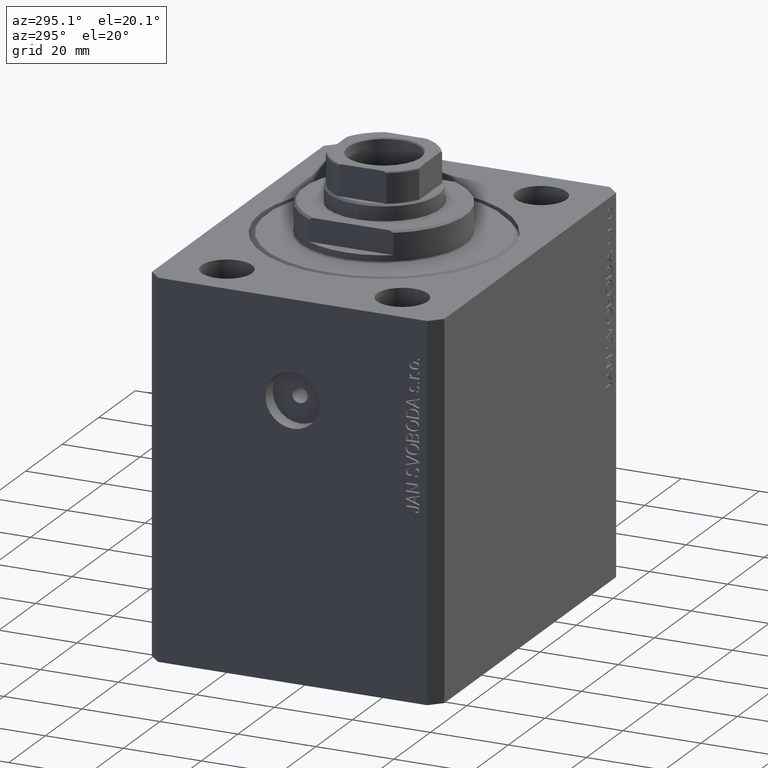
[diagram: clean part render]
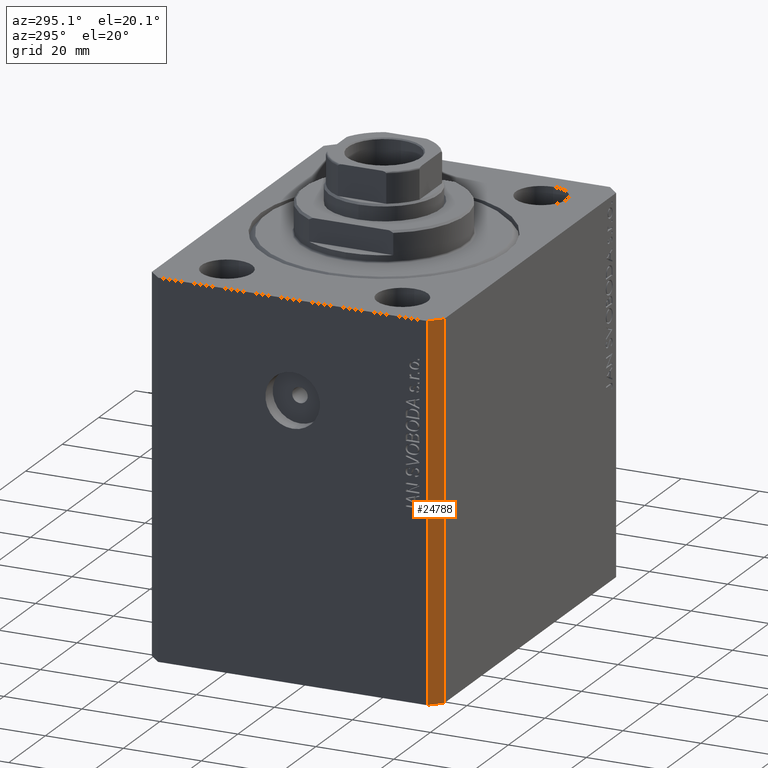
[diagram: same view with one face highlighted and labeled with its STEP entity id]
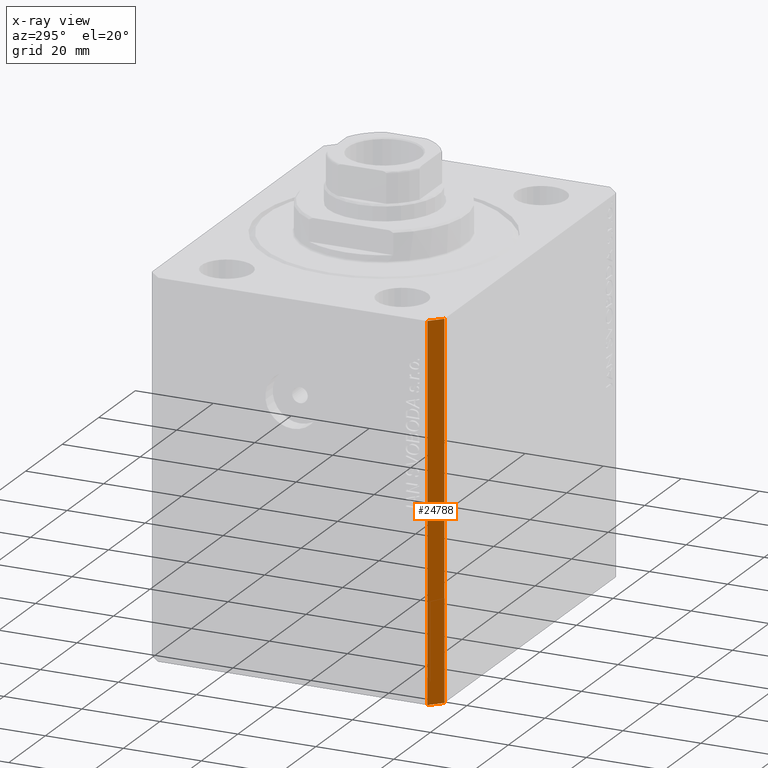
[diagram: x-ray of the same camera — body ghosted, the highlighted face saturated]
A machine part, auxiliary view. The second image highlights one B-rep face of the part: STEP entity #24788.
The next image is the same camera in x-ray: the body ghosted, the highlighted face saturated — about 0% of this face is hidden behind the body in this view.
In plain terms, the highlighted planar face has unit normal (-0.7071, -0.7071, 0).
Its self-contained STEP definition (entity closure, byte-faithful):
#889 = VECTOR ( 'NONE', #39900, 1000.000000000000114 ) ;
#1004 = EDGE_CURVE ( 'NONE', #42676, #34347, #13679, .T. ) ;
#5081 = CARTESIAN_POINT ( 'NONE',  ( -50.00000000000000000, -34.50000000000000000, -95.00000000000000000 ) ) ;
#5950 = EDGE_CURVE ( 'NONE', #43506, #7069, #13274, .T. ) ;
#7069 = VERTEX_POINT ( 'NONE', #34210 ) ;
#7318 = DIRECTION ( 'NONE',  ( -0.7071067811865457964, -0.7071067811865492381, 0.000000000000000000 ) ) ;
#7351 = CARTESIAN_POINT ( 'NONE',  ( -50.00000000000000000, -34.50000000000000000, -95.00000000000000000 ) ) ;
#8243 = EDGE_CURVE ( 'NONE', #34347, #7069, #27576, .T. ) ;
#8548 = VECTOR ( 'NONE', #19715, 1000.000000000000000 ) ;
#10399 = CARTESIAN_POINT ( 'NONE',  ( -50.00000000000000000, -34.50000000000000000, 0.000000000000000000 ) ) ;
#10434 = DIRECTION ( 'NONE',  ( 0.000000000000000000, 0.000000000000000000, 1.000000000000000000 ) ) ;
#13274 = LINE ( 'NONE', #15992, #889 ) ;
#13610 = EDGE_LOOP ( 'NONE', ( #26225, #18102, #38078, #41554 ) ) ;
#13679 = LINE ( 'NONE', #7351, #41925 ) ;
#15992 = CARTESIAN_POINT ( 'NONE',  ( -50.00000000000000000, -34.50000000000000000, 0.000000000000000000 ) ) ;
#18102 = ORIENTED_EDGE ( 'NONE', *, *, #19043, .F. ) ;
#19043 = EDGE_CURVE ( 'NONE', #42676, #43506, #36842, .T. ) ;
#19715 = DIRECTION ( 'NONE',  ( 0.000000000000000000, 0.000000000000000000, 1.000000000000000000 ) ) ;
#24788 = ADVANCED_FACE ( 'NONE', ( #34617 ), #38212, .T. ) ;
#26225 = ORIENTED_EDGE ( 'NONE', *, *, #5950, .F. ) ;
#27576 = LINE ( 'NONE', #41309, #34057 ) ;
#27863 = CARTESIAN_POINT ( 'NONE',  ( -50.00000000000000000, -34.50000000000000000, -95.00000000000000000 ) ) ;
#28082 = DIRECTION ( 'NONE',  ( 0.7071067811865492381, -0.7071067811865457964, 0.000000000000000000 ) ) ;
#34057 = VECTOR ( 'NONE', #10434, 1000.000000000000000 ) ;
#34210 = CARTESIAN_POINT ( 'NONE',  ( -47.00000000000000000, -37.49999999999999289, 0.000000000000000000 ) ) ;
#34243 = CARTESIAN_POINT ( 'NONE',  ( -47.00000000000000000, -37.49999999999999289, -95.00000000000000000 ) ) ;
#34347 = VERTEX_POINT ( 'NONE', #34243 ) ;
#34617 = FACE_OUTER_BOUND ( 'NONE', #13610, .T. ) ;
#36842 = LINE ( 'NONE', #5081, #8548 ) ;
#37572 = DIRECTION ( 'NONE',  ( 0.7071067811865491270, -0.7071067811865459074, 0.000000000000000000 ) ) ;
#38078 = ORIENTED_EDGE ( 'NONE', *, *, #1004, .T. ) ;
#38212 = PLANE ( 'NONE',  #43789 ) ;
#39294 = CARTESIAN_POINT ( 'NONE',  ( -50.00000000000000000, -34.50000000000000000, -95.00000000000000000 ) ) ;
#39900 = DIRECTION ( 'NONE',  ( 0.7071067811865491270, -0.7071067811865459074, 0.000000000000000000 ) ) ;
#41309 = CARTESIAN_POINT ( 'NONE',  ( -47.00000000000000000, -37.49999999999999289, -95.00000000000000000 ) ) ;
#41554 = ORIENTED_EDGE ( 'NONE', *, *, #8243, .T. ) ;
#41925 = VECTOR ( 'NONE', #37572, 1000.000000000000114 ) ;
#42676 = VERTEX_POINT ( 'NONE', #39294 ) ;
#43506 = VERTEX_POINT ( 'NONE', #10399 ) ;
#43789 = AXIS2_PLACEMENT_3D ( 'NONE', #27863, #7318, #28082 ) ;